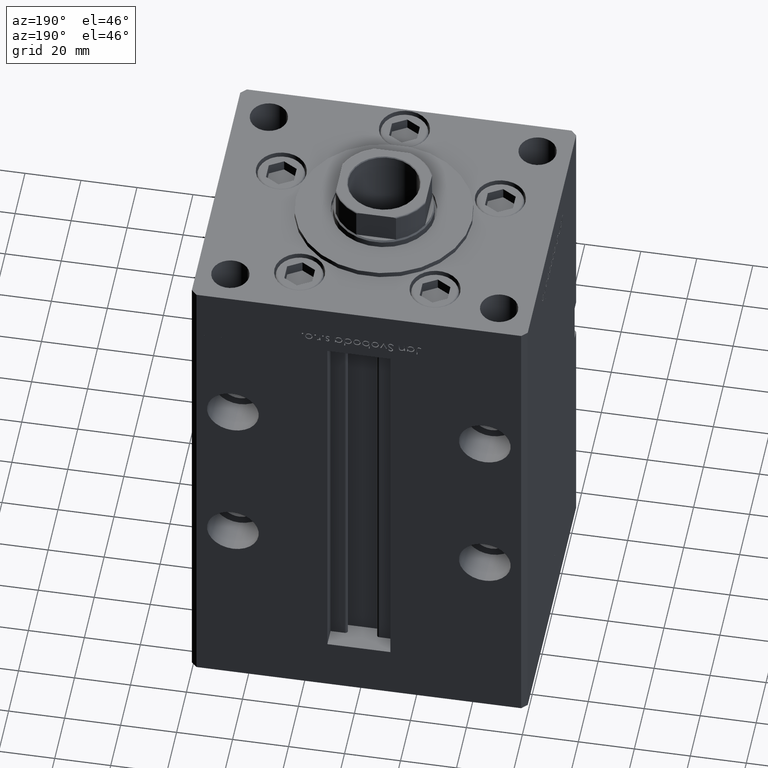
[diagram: clean part render]
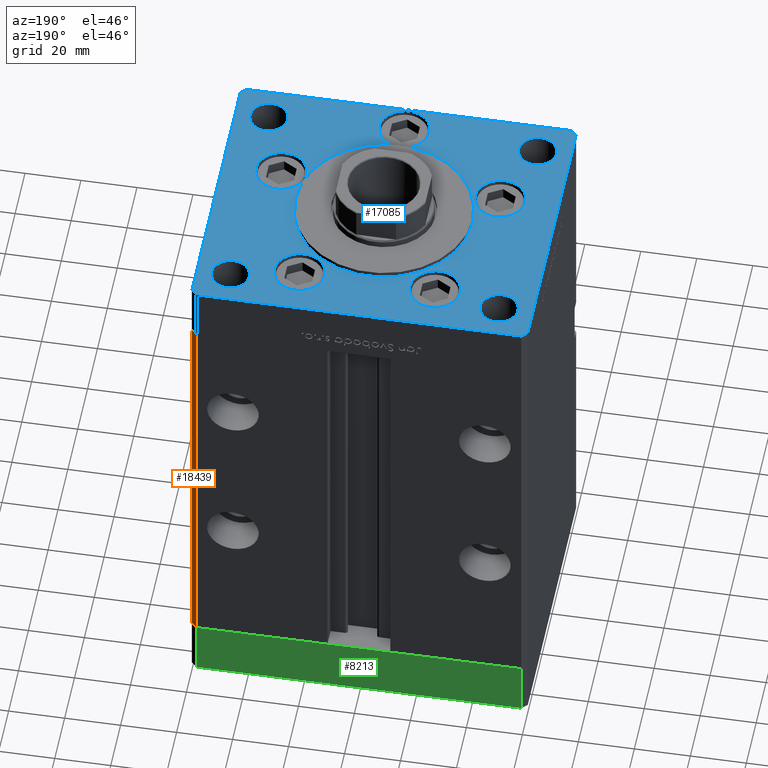
[diagram: same view with three faces highlighted in distinct colors, each labeled with its STEP entity id]
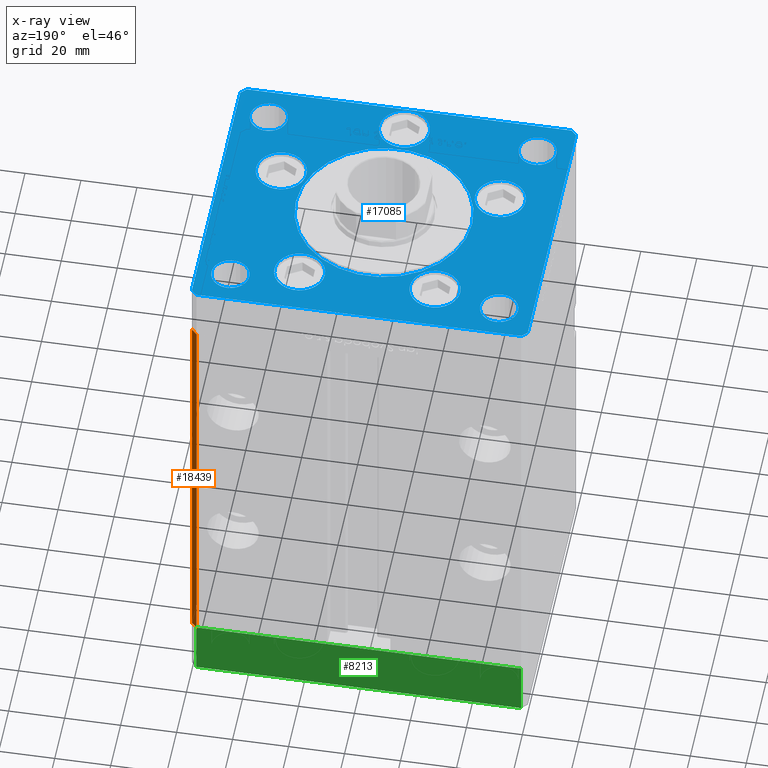
[diagram: x-ray of the same camera — body ghosted, the three highlighted faces saturated]
A machine part, auxiliary view with three faces highlighted in distinct colors.
The next image is the same camera in x-ray (body ghosted, the three faces saturated) — at least one of them is partly hidden behind the body in this view.
Their STEP definitions:

[orange] entity #18439 — the highlighted planar face has unit normal (0.7071, 0.7071, 0).
#447 = VERTEX_POINT ( 'NONE', #13928 ) ;
#452 = ORIENTED_EDGE ( 'NONE', *, *, #51378, .T. ) ;
#2524 = VECTOR ( 'NONE', #8124, 1000.000000000000114 ) ;
#4345 = EDGE_CURVE ( 'NONE', #10965, #8953, #28503, .T. ) ;
#8124 = DIRECTION ( 'NONE',  ( 0.7071067811865500152, -0.7071067811865451302, 0.000000000000000000 ) ) ;
#8564 = CARTESIAN_POINT ( 'NONE',  ( 57.99999999999999289, 51.00000000000000711, 0.000000000000000000 ) ) ;
#8953 = VERTEX_POINT ( 'NONE', #38771 ) ;
#10660 = ORIENTED_EDGE ( 'NONE', *, *, #44361, .F. ) ;
#10965 = VERTEX_POINT ( 'NONE', #33026 ) ;
#13928 = CARTESIAN_POINT ( 'NONE',  ( 60.00000000000001421, 49.00000000000000000, 0.000000000000000000 ) ) ;
#15336 = VECTOR ( 'NONE', #24058, 1000.000000000000000 ) ;
#17616 = AXIS2_PLACEMENT_3D ( 'NONE', #23137, #18576, #22354 ) ;
#18322 = FACE_OUTER_BOUND ( 'NONE', #39836, .T. ) ;
#18411 = ORIENTED_EDGE ( 'NONE', *, *, #51585, .F. ) ;
#18439 = ADVANCED_FACE ( 'NONE', ( #18322 ), #22086, .T. ) ;
#18576 = DIRECTION ( 'NONE',  ( 0.7071067811865451302, 0.7071067811865499042, -0.000000000000000000 ) ) ;
#22086 = PLANE ( 'NONE',  #17616 ) ;
#22354 = DIRECTION ( 'NONE',  ( -0.7071067811865499042, 0.7071067811865451302, 0.000000000000000000 ) ) ;
#22396 = LINE ( 'NONE', #34692, #53032 ) ;
#22726 = ORIENTED_EDGE ( 'NONE', *, *, #4345, .T. ) ;
#23137 = CARTESIAN_POINT ( 'NONE',  ( 57.99999999999999289, 51.00000000000000711, 148.5000000000000000 ) ) ;
#23247 = LINE ( 'NONE', #32077, #15336 ) ;
#24058 = DIRECTION ( 'NONE',  ( -0.000000000000000000, -0.000000000000000000, -1.000000000000000000 ) ) ;
#26450 = VERTEX_POINT ( 'NONE', #8564 ) ;
#27968 = CARTESIAN_POINT ( 'NONE',  ( 57.99999999999999289, 51.00000000000000711, 148.5000000000000000 ) ) ;
#28503 = LINE ( 'NONE', #27968, #2524 ) ;
#28829 = VECTOR ( 'NONE', #41973, 1000.000000000000114 ) ;
#29883 = LINE ( 'NONE', #41188, #28829 ) ;
#32077 = CARTESIAN_POINT ( 'NONE',  ( 60.00000000000001421, 49.00000000000000000, 148.5000000000000000 ) ) ;
#33026 = CARTESIAN_POINT ( 'NONE',  ( 57.99999999999999289, 51.00000000000000711, 148.5000000000000000 ) ) ;
#34692 = CARTESIAN_POINT ( 'NONE',  ( 57.99999999999999289, 51.00000000000000711, 148.5000000000000000 ) ) ;
#38771 = CARTESIAN_POINT ( 'NONE',  ( 60.00000000000001421, 49.00000000000000000, 148.5000000000000000 ) ) ;
#38990 = DIRECTION ( 'NONE',  ( -0.000000000000000000, -0.000000000000000000, -1.000000000000000000 ) ) ;
#39836 = EDGE_LOOP ( 'NONE', ( #10660, #18411, #22726, #452 ) ) ;
#41188 = CARTESIAN_POINT ( 'NONE',  ( 57.99999999999999289, 51.00000000000000711, 0.000000000000000000 ) ) ;
#41973 = DIRECTION ( 'NONE',  ( 0.7071067811865500152, -0.7071067811865451302, 0.000000000000000000 ) ) ;
#44361 = EDGE_CURVE ( 'NONE', #26450, #447, #29883, .T. ) ;
#51378 = EDGE_CURVE ( 'NONE', #8953, #447, #23247, .T. ) ;
#51585 = EDGE_CURVE ( 'NONE', #10965, #26450, #22396, .T. ) ;
#53032 = VECTOR ( 'NONE', #38990, 1000.000000000000000 ) ;

[blue] entity #17085 — the highlighted planar face has unit normal (0, 0, 1).
#402 = ORIENTED_EDGE ( 'NONE', *, *, #26818, .T. ) ;
#417 = CARTESIAN_POINT ( 'NONE',  ( -57.99999999999998579, 50.99999999999997868, 0.000000000000000000 ) ) ;
#444 = DIRECTION ( 'NONE',  ( -1.000000000000000000, 0.000000000000000000, 0.000000000000000000 ) ) ;
#678 = DIRECTION ( 'NONE',  ( 0.7071067811865474617, -0.7071067811865474617, 0.000000000000000000 ) ) ;
#778 = CIRCLE ( 'NONE', #39305, 31.50000000000000000 ) ;
#839 = DIRECTION ( 'NONE',  ( 1.000000000000000000, 9.570888143320313916E-16, 0.000000000000000000 ) ) ;
#850 = AXIS2_PLACEMENT_3D ( 'NONE', #49615, #33514, #8066 ) ;
#1142 = FACE_BOUND ( 'NONE', #2109, .T. ) ;
#2109 = EDGE_LOOP ( 'NONE', ( #9364, #37069 ) ) ;
#2478 = EDGE_LOOP ( 'NONE', ( #40211, #36407 ) ) ;
#2539 = CARTESIAN_POINT ( 'NONE',  ( -54.75000000000000000, -39.00000000000001421, 0.000000000000000000 ) ) ;
#2721 = CARTESIAN_POINT ( 'NONE',  ( -24.19288941894913592, 33.71874999999998579, 0.000000000000000000 ) ) ;
#3466 = AXIS2_PLACEMENT_3D ( 'NONE', #51587, #47052, #47573 ) ;
#3539 = DIRECTION ( 'NONE',  ( 1.000000000000000000, 0.000000000000000000, 0.000000000000000000 ) ) ;
#3543 = AXIS2_PLACEMENT_3D ( 'NONE', #28341, #37173, #444 ) ;
#3550 = CIRCLE ( 'NONE', #24930, 9.000000000000000000 ) ;
#3590 = CARTESIAN_POINT ( 'NONE',  ( 39.12657522565563539, -13.83333333333332860, 0.000000000000000000 ) ) ;
#3878 = CARTESIAN_POINT ( 'NONE',  ( 24.19288941894913592, 33.71874999999998579, 0.000000000000000000 ) ) ;
#3948 = EDGE_CURVE ( 'NONE', #34974, #8174, #7927, .T. ) ;
#3997 = AXIS2_PLACEMENT_3D ( 'NONE', #3878, #7626, #20245 ) ;
#4208 = CARTESIAN_POINT ( 'NONE',  ( 48.12657522565563539, -13.83333333333332860, 0.000000000000000000 ) ) ;
#4377 = CIRCLE ( 'NONE', #850, 9.000000000000001776 ) ;
#4946 = AXIS2_PLACEMENT_3D ( 'NONE', #36270, #8650, #37065 ) ;
#5231 = CARTESIAN_POINT ( 'NONE',  ( 58.00000000000000000, 51.00000000000000711, 0.000000000000000000 ) ) ;
#5320 = EDGE_CURVE ( 'NONE', #26225, #11371, #30789, .T. ) ;
#5554 = ORIENTED_EDGE ( 'NONE', *, *, #37290, .T. ) ;
#6052 = EDGE_CURVE ( 'NONE', #11535, #30641, #11147, .T. ) ;
#6193 = CARTESIAN_POINT ( 'NONE',  ( -48.00000000000000000, 39.00000000000000711, 0.000000000000000000 ) ) ;
#6270 = CARTESIAN_POINT ( 'NONE',  ( 60.00000000000001421, -48.99999999999992895, 0.000000000000000000 ) ) ;
#6360 = VERTEX_POINT ( 'NONE', #2539 ) ;
#6376 = EDGE_CURVE ( 'NONE', #45200, #25904, #17163, .T. ) ;
#6521 = CARTESIAN_POINT ( 'NONE',  ( 31.50000000000000000, -3.081256486593065689E-15, 0.000000000000000000 ) ) ;
#6700 = ORIENTED_EDGE ( 'NONE', *, *, #6376, .F. ) ;
#6874 = DIRECTION ( 'NONE',  ( 1.000000000000000000, 0.000000000000000000, 0.000000000000000000 ) ) ;
#6931 = DIRECTION ( 'NONE',  ( 1.000000000000000000, 0.000000000000000000, 0.000000000000000000 ) ) ;
#7191 = CIRCLE ( 'NONE', #19189, 9.000000000000000000 ) ;
#7626 = DIRECTION ( 'NONE',  ( 0.000000000000000000, 0.000000000000000000, 1.000000000000000000 ) ) ;
#7704 = CIRCLE ( 'NONE', #41955, 6.749999999999999112 ) ;
#7837 = CARTESIAN_POINT ( 'NONE',  ( 15.19288941894913236, 33.71874999999998579, 0.000000000000000000 ) ) ;
#7927 = LINE ( 'NONE', #417, #46153 ) ;
#7938 = CARTESIAN_POINT ( 'NONE',  ( -48.12657522565563539, -13.83333333333332682, 0.000000000000000000 ) ) ;
#8066 = DIRECTION ( 'NONE',  ( 1.000000000000000000, 0.000000000000000000, 0.000000000000000000 ) ) ;
#8174 = VERTEX_POINT ( 'NONE', #30698 ) ;
#8188 = VERTEX_POINT ( 'NONE', #30433 ) ;
#8236 = EDGE_CURVE ( 'NONE', #37383, #42125, #34189, .T. ) ;
#8592 = EDGE_LOOP ( 'NONE', ( #24203, #26506 ) ) ;
#8650 = DIRECTION ( 'NONE',  ( 0.000000000000000000, 0.000000000000000000, 1.000000000000000000 ) ) ;
#8725 = CARTESIAN_POINT ( 'NONE',  ( -60.00000000000000000, -49.00000000000004263, 0.000000000000000000 ) ) ;
#8974 = DIRECTION ( 'NONE',  ( -0.000000000000000000, -0.000000000000000000, -1.000000000000000000 ) ) ;
#9350 = VECTOR ( 'NONE', #30674, 1000.000000000000000 ) ;
#9364 = ORIENTED_EDGE ( 'NONE', *, *, #8236, .F. ) ;
#9707 = FACE_BOUND ( 'NONE', #36487, .T. ) ;
#9968 = FACE_BOUND ( 'NONE', #30309, .T. ) ;
#10120 = DIRECTION ( 'NONE',  ( 0.000000000000000000, 0.000000000000000000, 1.000000000000000000 ) ) ;
#10349 = DIRECTION ( 'NONE',  ( 0.000000000000000000, 0.000000000000000000, 1.000000000000000000 ) ) ;
#10585 = EDGE_CURVE ( 'NONE', #6360, #31231, #18830, .T. ) ;
#10831 = DIRECTION ( 'NONE',  ( 1.000000000000000000, 0.000000000000000000, 0.000000000000000000 ) ) ;
#10892 = VERTEX_POINT ( 'NONE', #18574 ) ;
#11106 = AXIS2_PLACEMENT_3D ( 'NONE', #47077, #10349, #25903 ) ;
#11112 = CARTESIAN_POINT ( 'NONE',  ( 60.00000000000001421, 49.00000000000002842, 0.000000000000000000 ) ) ;
#11147 = CIRCLE ( 'NONE', #45409, 9.000000000000001776 ) ;
#11311 = DIRECTION ( 'NONE',  ( -1.000000000000000000, 0.000000000000000000, 0.000000000000000000 ) ) ;
#11326 = CARTESIAN_POINT ( 'NONE',  ( -54.75000000000000000, 39.00000000000000711, 0.000000000000000000 ) ) ;
#11348 = DIRECTION ( 'NONE',  ( 0.000000000000000000, 0.000000000000000000, 1.000000000000000000 ) ) ;
#11371 = VERTEX_POINT ( 'NONE', #17664 ) ;
#11535 = VERTEX_POINT ( 'NONE', #15515 ) ;
#12226 = DIRECTION ( 'NONE',  ( -1.000000000000000000, 0.000000000000000000, 0.000000000000000000 ) ) ;
#12579 = CARTESIAN_POINT ( 'NONE',  ( -48.00000000000000000, -39.00000000000001421, 0.000000000000000000 ) ) ;
#12783 = EDGE_CURVE ( 'NONE', #11371, #26225, #7191, .T. ) ;
#13413 = VECTOR ( 'NONE', #14601, 1000.000000000000000 ) ;
#13984 = ORIENTED_EDGE ( 'NONE', *, *, #12783, .F. ) ;
#14082 = CARTESIAN_POINT ( 'NONE',  ( -60.00000000000000000, -49.00000000000004263, 0.000000000000000000 ) ) ;
#14168 = AXIS2_PLACEMENT_3D ( 'NONE', #47557, #15398, #10831 ) ;
#14339 = LINE ( 'NONE', #5231, #9350 ) ;
#14601 = DIRECTION ( 'NONE',  ( -0.7071067811865536790, 0.7071067811865414665, 0.000000000000000000 ) ) ;
#15049 = PLANE ( 'NONE',  #33000 ) ;
#15177 = ORIENTED_EDGE ( 'NONE', *, *, #10585, .F. ) ;
#15398 = DIRECTION ( 'NONE',  ( 0.000000000000000000, 0.000000000000000000, 1.000000000000000000 ) ) ;
#15407 = CIRCLE ( 'NONE', #45366, 9.000000000000001776 ) ;
#15515 = CARTESIAN_POINT ( 'NONE',  ( 30.12657522565563539, -13.83333333333332682, 0.000000000000000000 ) ) ;
#15561 = ORIENTED_EDGE ( 'NONE', *, *, #21461, .F. ) ;
#15639 = CARTESIAN_POINT ( 'NONE',  ( 0.000000000000000000, -41.50000000000000000, 0.000000000000000000 ) ) ;
#15912 = EDGE_CURVE ( 'NONE', #52888, #49914, #49469, .T. ) ;
#15920 = DIRECTION ( 'NONE',  ( 0.000000000000000000, 0.000000000000000000, 1.000000000000000000 ) ) ;
#16025 = CIRCLE ( 'NONE', #14168, 6.749999999999999112 ) ;
#16450 = DIRECTION ( 'NONE',  ( 1.000000000000000000, 0.000000000000000000, 0.000000000000000000 ) ) ;
#16533 = CARTESIAN_POINT ( 'NONE',  ( -58.00000000000000711, -51.00000000000002842, 0.000000000000000000 ) ) ;
#16952 = EDGE_LOOP ( 'NONE', ( #46015, #43789 ) ) ;
#17032 = CARTESIAN_POINT ( 'NONE',  ( 48.00000000000000000, -39.00000000000001421, 0.000000000000000000 ) ) ;
#17085 = ADVANCED_FACE ( 'NONE', ( #9707, #21539, #1142, #17500, #33825, #50189, #34356, #46694, #9968, #42671, #43739 ), #15049, .T. ) ;
#17163 = CIRCLE ( 'NONE', #3466, 31.50000000000000000 ) ;
#17500 = FACE_BOUND ( 'NONE', #32121, .T. ) ;
#17664 = CARTESIAN_POINT ( 'NONE',  ( -9.000000000000000000, -41.50000000000000000, 0.000000000000000000 ) ) ;
#17680 = CIRCLE ( 'NONE', #3997, 9.000000000000001776 ) ;
#17716 = CARTESIAN_POINT ( 'NONE',  ( -60.00000000000000000, 49.00000000000000000, 0.000000000000000000 ) ) ;
#17735 = EDGE_CURVE ( 'NONE', #41058, #23407, #22736, .T. ) ;
#17780 = CARTESIAN_POINT ( 'NONE',  ( -41.25000000000000000, -39.00000000000001421, 0.000000000000000000 ) ) ;
#17813 = CARTESIAN_POINT ( 'NONE',  ( -57.99999999999998579, 50.99999999999997868, 0.000000000000000000 ) ) ;
#18574 = CARTESIAN_POINT ( 'NONE',  ( 58.00000000000001421, -50.99999999999992184, 0.000000000000000000 ) ) ;
#18802 = CARTESIAN_POINT ( 'NONE',  ( 41.25000000000000000, 39.00000000000000000, 0.000000000000000000 ) ) ;
#18830 = CIRCLE ( 'NONE', #25679, 6.749999999999999112 ) ;
#19189 = AXIS2_PLACEMENT_3D ( 'NONE', #15639, #11348, #40296 ) ;
#19388 = ORIENTED_EDGE ( 'NONE', *, *, #44364, .T. ) ;
#19500 = CARTESIAN_POINT ( 'NONE',  ( -39.12657522565563539, -13.83333333333332860, 0.000000000000000000 ) ) ;
#19723 = CARTESIAN_POINT ( 'NONE',  ( 0.000000000000000000, -6.938893903907228378E-15, 0.000000000000000000 ) ) ;
#20020 = DIRECTION ( 'NONE',  ( -0.7071067811865536790, -0.7071067811865414665, 0.000000000000000000 ) ) ;
#20078 = VERTEX_POINT ( 'NONE', #32125 ) ;
#20245 = DIRECTION ( 'NONE',  ( 1.000000000000000000, 0.000000000000000000, 0.000000000000000000 ) ) ;
#21459 = EDGE_LOOP ( 'NONE', ( #5554, #29455 ) ) ;
#21461 = EDGE_CURVE ( 'NONE', #48549, #20078, #16025, .T. ) ;
#21495 = AXIS2_PLACEMENT_3D ( 'NONE', #39109, #51171, #6931 ) ;
#21539 = FACE_BOUND ( 'NONE', #8592, .T. ) ;
#21611 = LINE ( 'NONE', #6270, #22817 ) ;
#22195 = DIRECTION ( 'NONE',  ( 1.000000000000000000, 0.000000000000000000, 0.000000000000000000 ) ) ;
#22454 = DIRECTION ( 'NONE',  ( 0.000000000000000000, 0.000000000000000000, 1.000000000000000000 ) ) ;
#22481 = VERTEX_POINT ( 'NONE', #11326 ) ;
#22716 = CARTESIAN_POINT ( 'NONE',  ( -30.12657522565563539, -13.83333333333332860, 0.000000000000000000 ) ) ;
#22736 = CIRCLE ( 'NONE', #45823, 6.749999999999999112 ) ;
#22817 = VECTOR ( 'NONE', #38727, 1000.000000000000000 ) ;
#23100 = DIRECTION ( 'NONE',  ( -0.000000000000000000, 0.000000000000000000, 1.000000000000000000 ) ) ;
#23105 = CARTESIAN_POINT ( 'NONE',  ( -41.25000000000000000, 39.00000000000000711, 0.000000000000000000 ) ) ;
#23189 = CARTESIAN_POINT ( 'NONE',  ( 54.75000000000000000, -39.00000000000001421, 0.000000000000000000 ) ) ;
#23332 = VERTEX_POINT ( 'NONE', #23105 ) ;
#23407 = VERTEX_POINT ( 'NONE', #52589 ) ;
#23906 = DIRECTION ( 'NONE',  ( 1.000000000000000000, 0.000000000000000000, 0.000000000000000000 ) ) ;
#24142 = EDGE_CURVE ( 'NONE', #49914, #10892, #36505, .T. ) ;
#24203 = ORIENTED_EDGE ( 'NONE', *, *, #35652, .F. ) ;
#24276 = VERTEX_POINT ( 'NONE', #34562 ) ;
#24436 = VERTEX_POINT ( 'NONE', #28397 ) ;
#24754 = AXIS2_PLACEMENT_3D ( 'NONE', #19500, #35833, #27791 ) ;
#24815 = CARTESIAN_POINT ( 'NONE',  ( 60.00000000000001421, 49.00000000000002842, 0.000000000000000000 ) ) ;
#24930 = AXIS2_PLACEMENT_3D ( 'NONE', #2721, #44546, #3539 ) ;
#25059 = EDGE_CURVE ( 'NONE', #42125, #37383, #17680, .T. ) ;
#25679 = AXIS2_PLACEMENT_3D ( 'NONE', #51602, #48136, #43297 ) ;
#25903 = DIRECTION ( 'NONE',  ( 1.000000000000000000, 0.000000000000000000, 0.000000000000000000 ) ) ;
#25904 = VERTEX_POINT ( 'NONE', #46468 ) ;
#26225 = VERTEX_POINT ( 'NONE', #43158 ) ;
#26506 = ORIENTED_EDGE ( 'NONE', *, *, #37302, .F. ) ;
#26692 = ORIENTED_EDGE ( 'NONE', *, *, #15912, .T. ) ;
#26818 = EDGE_CURVE ( 'NONE', #8174, #52888, #38083, .T. ) ;
#27379 = CARTESIAN_POINT ( 'NONE',  ( 33.19288941894913592, 33.71874999999998579, 0.000000000000000000 ) ) ;
#27455 = LINE ( 'NONE', #11112, #13413 ) ;
#27791 = DIRECTION ( 'NONE',  ( 1.000000000000000000, 0.000000000000000000, 0.000000000000000000 ) ) ;
#28068 = VECTOR ( 'NONE', #44312, 1000.000000000000114 ) ;
#28341 = CARTESIAN_POINT ( 'NONE',  ( -48.00000000000000000, 39.00000000000000711, 0.000000000000000000 ) ) ;
#28365 = CIRCLE ( 'NONE', #48884, 6.749999999999999112 ) ;
#28397 = CARTESIAN_POINT ( 'NONE',  ( 60.00000000000001421, -48.99999999999992895, 0.000000000000000000 ) ) ;
#28711 = ORIENTED_EDGE ( 'NONE', *, *, #45162, .T. ) ;
#29206 = CIRCLE ( 'NONE', #49644, 6.749999999999999112 ) ;
#29422 = CARTESIAN_POINT ( 'NONE',  ( -33.19288941894913592, 33.71874999999998579, 0.000000000000000000 ) ) ;
#29455 = ORIENTED_EDGE ( 'NONE', *, *, #40879, .T. ) ;
#30231 = ORIENTED_EDGE ( 'NONE', *, *, #5320, .F. ) ;
#30309 = EDGE_LOOP ( 'NONE', ( #36524, #15177 ) ) ;
#30433 = CARTESIAN_POINT ( 'NONE',  ( -15.19288941894913592, 33.71874999999998579, 0.000000000000000000 ) ) ;
#30641 = VERTEX_POINT ( 'NONE', #4208 ) ;
#30674 = DIRECTION ( 'NONE',  ( -1.000000000000000000, -2.392722035830078972E-16, 0.000000000000000000 ) ) ;
#30698 = CARTESIAN_POINT ( 'NONE',  ( -60.00000000000000000, 49.00000000000000000, 0.000000000000000000 ) ) ;
#30789 = CIRCLE ( 'NONE', #36788, 9.000000000000000000 ) ;
#31033 = EDGE_CURVE ( 'NONE', #25904, #45200, #778, .T. ) ;
#31119 = CARTESIAN_POINT ( 'NONE',  ( 0.000000000000000000, 0.000000000000000000, 0.000000000000000000 ) ) ;
#31231 = VERTEX_POINT ( 'NONE', #17780 ) ;
#31662 = ORIENTED_EDGE ( 'NONE', *, *, #31033, .F. ) ;
#31974 = LINE ( 'NONE', #48342, #28068 ) ;
#32121 = EDGE_LOOP ( 'NONE', ( #45845, #45245 ) ) ;
#32125 = CARTESIAN_POINT ( 'NONE',  ( 54.75000000000000000, 39.00000000000000000, 0.000000000000000000 ) ) ;
#32234 = CARTESIAN_POINT ( 'NONE',  ( 48.00000000000000000, -39.00000000000001421, 0.000000000000000000 ) ) ;
#32418 = DIRECTION ( 'NONE',  ( 1.000000000000000000, 0.000000000000000000, 0.000000000000000000 ) ) ;
#32479 = CIRCLE ( 'NONE', #24754, 9.000000000000001776 ) ;
#32747 = CARTESIAN_POINT ( 'NONE',  ( -58.00000000000000711, -51.00000000000002842, 0.000000000000000000 ) ) ;
#33000 = AXIS2_PLACEMENT_3D ( 'NONE', #31119, #23100, #23906 ) ;
#33514 = DIRECTION ( 'NONE',  ( 0.000000000000000000, 0.000000000000000000, 1.000000000000000000 ) ) ;
#33825 = FACE_BOUND ( 'NONE', #50429, .T. ) ;
#33863 = EDGE_CURVE ( 'NONE', #23407, #41058, #7704, .T. ) ;
#34006 = VERTEX_POINT ( 'NONE', #24815 ) ;
#34189 = CIRCLE ( 'NONE', #11106, 9.000000000000001776 ) ;
#34241 = CARTESIAN_POINT ( 'NONE',  ( 39.12657522565563539, -13.83333333333332860, 0.000000000000000000 ) ) ;
#34253 = EDGE_CURVE ( 'NONE', #30641, #11535, #15407, .T. ) ;
#34356 = FACE_BOUND ( 'NONE', #21459, .T. ) ;
#34562 = CARTESIAN_POINT ( 'NONE',  ( 58.00000000000000000, 51.00000000000000711, 0.000000000000000000 ) ) ;
#34916 = ORIENTED_EDGE ( 'NONE', *, *, #47614, .T. ) ;
#34974 = VERTEX_POINT ( 'NONE', #17813 ) ;
#35652 = EDGE_CURVE ( 'NONE', #8188, #35985, #39462, .T. ) ;
#35711 = DIRECTION ( 'NONE',  ( -0.000000000000000000, -0.000000000000000000, -1.000000000000000000 ) ) ;
#35749 = CIRCLE ( 'NONE', #4946, 6.749999999999999112 ) ;
#35833 = DIRECTION ( 'NONE',  ( 0.000000000000000000, 0.000000000000000000, 1.000000000000000000 ) ) ;
#35985 = VERTEX_POINT ( 'NONE', #29422 ) ;
#36226 = DIRECTION ( 'NONE',  ( -0.000000000000000000, -0.000000000000000000, -1.000000000000000000 ) ) ;
#36270 = CARTESIAN_POINT ( 'NONE',  ( 48.00000000000000000, 39.00000000000000000, 0.000000000000000000 ) ) ;
#36350 = ORIENTED_EDGE ( 'NONE', *, *, #51530, .T. ) ;
#36407 = ORIENTED_EDGE ( 'NONE', *, *, #37499, .F. ) ;
#36487 = EDGE_LOOP ( 'NONE', ( #31662, #6700 ) ) ;
#36505 = LINE ( 'NONE', #32747, #51892 ) ;
#36524 = ORIENTED_EDGE ( 'NONE', *, *, #40640, .F. ) ;
#36788 = AXIS2_PLACEMENT_3D ( 'NONE', #39326, #22454, #6874 ) ;
#36907 = CIRCLE ( 'NONE', #3543, 6.749999999999999112 ) ;
#37065 = DIRECTION ( 'NONE',  ( 1.000000000000000000, 0.000000000000000000, 0.000000000000000000 ) ) ;
#37069 = ORIENTED_EDGE ( 'NONE', *, *, #25059, .F. ) ;
#37173 = DIRECTION ( 'NONE',  ( -0.000000000000000000, -0.000000000000000000, -1.000000000000000000 ) ) ;
#37290 = EDGE_CURVE ( 'NONE', #23332, #22481, #29206, .T. ) ;
#37302 = EDGE_CURVE ( 'NONE', #35985, #8188, #3550, .T. ) ;
#37383 = VERTEX_POINT ( 'NONE', #27379 ) ;
#37499 = EDGE_CURVE ( 'NONE', #50572, #39548, #4377, .T. ) ;
#38083 = LINE ( 'NONE', #17716, #43397 ) ;
#38727 = DIRECTION ( 'NONE',  ( 0.000000000000000000, 1.000000000000000000, 0.000000000000000000 ) ) ;
#39109 = CARTESIAN_POINT ( 'NONE',  ( -24.19288941894913592, 33.71874999999998579, 0.000000000000000000 ) ) ;
#39305 = AXIS2_PLACEMENT_3D ( 'NONE', #19723, #49181, #44639 ) ;
#39326 = CARTESIAN_POINT ( 'NONE',  ( 0.000000000000000000, -41.50000000000000000, 0.000000000000000000 ) ) ;
#39462 = CIRCLE ( 'NONE', #21495, 9.000000000000000000 ) ;
#39548 = VERTEX_POINT ( 'NONE', #22716 ) ;
#40211 = ORIENTED_EDGE ( 'NONE', *, *, #52343, .F. ) ;
#40296 = DIRECTION ( 'NONE',  ( 1.000000000000000000, 0.000000000000000000, 0.000000000000000000 ) ) ;
#40640 = EDGE_CURVE ( 'NONE', #31231, #6360, #28365, .T. ) ;
#40879 = EDGE_CURVE ( 'NONE', #22481, #23332, #36907, .T. ) ;
#41058 = VERTEX_POINT ( 'NONE', #23189 ) ;
#41955 = AXIS2_PLACEMENT_3D ( 'NONE', #17032, #8974, #12226 ) ;
#42125 = VERTEX_POINT ( 'NONE', #7837 ) ;
#42671 = FACE_OUTER_BOUND ( 'NONE', #49270, .T. ) ;
#43158 = CARTESIAN_POINT ( 'NONE',  ( 9.000000000000000000, -41.50000000000000000, 0.000000000000000000 ) ) ;
#43297 = DIRECTION ( 'NONE',  ( 1.000000000000000000, 0.000000000000000000, 0.000000000000000000 ) ) ;
#43397 = VECTOR ( 'NONE', #50940, 1000.000000000000000 ) ;
#43436 = ORIENTED_EDGE ( 'NONE', *, *, #24142, .T. ) ;
#43739 = FACE_BOUND ( 'NONE', #16952, .T. ) ;
#43789 = ORIENTED_EDGE ( 'NONE', *, *, #33863, .T. ) ;
#44312 = DIRECTION ( 'NONE',  ( 0.7071067811865474617, 0.7071067811865474617, 0.000000000000000000 ) ) ;
#44364 = EDGE_CURVE ( 'NONE', #24436, #34006, #21611, .T. ) ;
#44394 = ORIENTED_EDGE ( 'NONE', *, *, #47678, .F. ) ;
#44546 = DIRECTION ( 'NONE',  ( 0.000000000000000000, 0.000000000000000000, 1.000000000000000000 ) ) ;
#44639 = DIRECTION ( 'NONE',  ( 1.000000000000000000, 0.000000000000000000, 0.000000000000000000 ) ) ;
#45162 = EDGE_CURVE ( 'NONE', #34006, #24276, #27455, .T. ) ;
#45200 = VERTEX_POINT ( 'NONE', #6521 ) ;
#45245 = ORIENTED_EDGE ( 'NONE', *, *, #6052, .F. ) ;
#45366 = AXIS2_PLACEMENT_3D ( 'NONE', #3590, #15920, #16450 ) ;
#45409 = AXIS2_PLACEMENT_3D ( 'NONE', #34241, #10120, #22195 ) ;
#45823 = AXIS2_PLACEMENT_3D ( 'NONE', #32234, #35711, #48331 ) ;
#45845 = ORIENTED_EDGE ( 'NONE', *, *, #34253, .F. ) ;
#46015 = ORIENTED_EDGE ( 'NONE', *, *, #17735, .T. ) ;
#46153 = VECTOR ( 'NONE', #20020, 1000.000000000000000 ) ;
#46468 = CARTESIAN_POINT ( 'NONE',  ( -31.50000000000000000, -6.938893903907228378E-15, 0.000000000000000000 ) ) ;
#46694 = FACE_BOUND ( 'NONE', #49601, .T. ) ;
#46788 = ORIENTED_EDGE ( 'NONE', *, *, #3948, .T. ) ;
#47052 = DIRECTION ( 'NONE',  ( 0.000000000000000000, 0.000000000000000000, 1.000000000000000000 ) ) ;
#47077 = CARTESIAN_POINT ( 'NONE',  ( 24.19288941894913592, 33.71874999999998579, 0.000000000000000000 ) ) ;
#47557 = CARTESIAN_POINT ( 'NONE',  ( 48.00000000000000000, 39.00000000000000000, 0.000000000000000000 ) ) ;
#47573 = DIRECTION ( 'NONE',  ( 1.000000000000000000, 0.000000000000000000, 0.000000000000000000 ) ) ;
#47614 = EDGE_CURVE ( 'NONE', #10892, #24436, #31974, .T. ) ;
#47678 = EDGE_CURVE ( 'NONE', #20078, #48549, #35749, .T. ) ;
#48136 = DIRECTION ( 'NONE',  ( 0.000000000000000000, 0.000000000000000000, 1.000000000000000000 ) ) ;
#48331 = DIRECTION ( 'NONE',  ( -1.000000000000000000, 0.000000000000000000, 0.000000000000000000 ) ) ;
#48342 = CARTESIAN_POINT ( 'NONE',  ( 58.00000000000001421, -50.99999999999992184, 0.000000000000000000 ) ) ;
#48549 = VERTEX_POINT ( 'NONE', #18802 ) ;
#48884 = AXIS2_PLACEMENT_3D ( 'NONE', #12579, #52534, #32418 ) ;
#49181 = DIRECTION ( 'NONE',  ( 0.000000000000000000, 0.000000000000000000, 1.000000000000000000 ) ) ;
#49270 = EDGE_LOOP ( 'NONE', ( #26692, #43436, #34916, #19388, #28711, #36350, #46788, #402 ) ) ;
#49469 = LINE ( 'NONE', #8725, #50065 ) ;
#49601 = EDGE_LOOP ( 'NONE', ( #44394, #15561 ) ) ;
#49615 = CARTESIAN_POINT ( 'NONE',  ( -39.12657522565563539, -13.83333333333332860, 0.000000000000000000 ) ) ;
#49644 = AXIS2_PLACEMENT_3D ( 'NONE', #6193, #36226, #11311 ) ;
#49914 = VERTEX_POINT ( 'NONE', #16533 ) ;
#50065 = VECTOR ( 'NONE', #678, 1000.000000000000114 ) ;
#50189 = FACE_BOUND ( 'NONE', #2478, .T. ) ;
#50429 = EDGE_LOOP ( 'NONE', ( #30231, #13984 ) ) ;
#50572 = VERTEX_POINT ( 'NONE', #7938 ) ;
#50940 = DIRECTION ( 'NONE',  ( 0.000000000000000000, -1.000000000000000000, 0.000000000000000000 ) ) ;
#51171 = DIRECTION ( 'NONE',  ( 0.000000000000000000, 0.000000000000000000, 1.000000000000000000 ) ) ;
#51530 = EDGE_CURVE ( 'NONE', #24276, #34974, #14339, .T. ) ;
#51587 = CARTESIAN_POINT ( 'NONE',  ( 0.000000000000000000, -6.938893903907228378E-15, 0.000000000000000000 ) ) ;
#51602 = CARTESIAN_POINT ( 'NONE',  ( -48.00000000000000000, -39.00000000000001421, 0.000000000000000000 ) ) ;
#51892 = VECTOR ( 'NONE', #839, 1000.000000000000000 ) ;
#52343 = EDGE_CURVE ( 'NONE', #39548, #50572, #32479, .T. ) ;
#52534 = DIRECTION ( 'NONE',  ( 0.000000000000000000, 0.000000000000000000, 1.000000000000000000 ) ) ;
#52589 = CARTESIAN_POINT ( 'NONE',  ( 41.25000000000000000, -39.00000000000001421, 0.000000000000000000 ) ) ;
#52888 = VERTEX_POINT ( 'NONE', #14082 ) ;

[green] entity #8213 — the highlighted planar face has unit normal (-0, 1, 0).
#1505 = VERTEX_POINT ( 'NONE', #28962 ) ;
#2611 = DIRECTION ( 'NONE',  ( -1.000000000000000000, -2.392722035830079958E-16, 0.000000000000000000 ) ) ;
#3139 = CARTESIAN_POINT ( 'NONE',  ( 57.99999999999993605, 51.00000000000000711, -20.00000000000000000 ) ) ;
#4663 = DIRECTION ( 'NONE',  ( 0.000000000000000000, 0.000000000000000000, 1.000000000000000000 ) ) ;
#5965 = LINE ( 'NONE', #46479, #37325 ) ;
#6269 = VECTOR ( 'NONE', #21247, 1000.000000000000000 ) ;
#6525 = VECTOR ( 'NONE', #2611, 1000.000000000000000 ) ;
#6847 = EDGE_LOOP ( 'NONE', ( #14702, #44407, #48484, #24517 ) ) ;
#7229 = VERTEX_POINT ( 'NONE', #41719 ) ;
#8213 = ADVANCED_FACE ( 'NONE', ( #22668 ), #18385, .T. ) ;
#12050 = EDGE_CURVE ( 'NONE', #1505, #7229, #38636, .T. ) ;
#13630 = VECTOR ( 'NONE', #4663, 1000.000000000000000 ) ;
#14702 = ORIENTED_EDGE ( 'NONE', *, *, #12050, .F. ) ;
#14939 = LINE ( 'NONE', #3139, #6525 ) ;
#15142 = VERTEX_POINT ( 'NONE', #20467 ) ;
#18385 = PLANE ( 'NONE',  #36783 ) ;
#18407 = EDGE_CURVE ( 'NONE', #15142, #1505, #5965, .T. ) ;
#20467 = CARTESIAN_POINT ( 'NONE',  ( 57.99999999999993605, 51.00000000000000711, -20.00000000000000000 ) ) ;
#21247 = DIRECTION ( 'NONE',  ( -1.000000000000000000, -2.392722035830079958E-16, 0.000000000000000000 ) ) ;
#22668 = FACE_OUTER_BOUND ( 'NONE', #6847, .T. ) ;
#24517 = ORIENTED_EDGE ( 'NONE', *, *, #32188, .T. ) ;
#24614 = EDGE_CURVE ( 'NONE', #15142, #41527, #14939, .T. ) ;
#25054 = LINE ( 'NONE', #25838, #13630 ) ;
#25838 = CARTESIAN_POINT ( 'NONE',  ( -57.99999999999999289, 50.99999999999997868, -20.00000000000000000 ) ) ;
#28962 = CARTESIAN_POINT ( 'NONE',  ( 57.99999999999993605, 51.00000000000000711, 0.000000000000000000 ) ) ;
#29915 = CARTESIAN_POINT ( 'NONE',  ( 57.99999999999993605, 51.00000000000000711, -20.00000000000000000 ) ) ;
#32188 = EDGE_CURVE ( 'NONE', #41527, #7229, #25054, .T. ) ;
#34914 = DIRECTION ( 'NONE',  ( 0.000000000000000000, 0.000000000000000000, 1.000000000000000000 ) ) ;
#36783 = AXIS2_PLACEMENT_3D ( 'NONE', #29915, #43043, #50568 ) ;
#37325 = VECTOR ( 'NONE', #34914, 1000.000000000000000 ) ;
#38636 = LINE ( 'NONE', #41607, #6269 ) ;
#41003 = CARTESIAN_POINT ( 'NONE',  ( -57.99999999999999289, 50.99999999999997868, -20.00000000000000000 ) ) ;
#41527 = VERTEX_POINT ( 'NONE', #41003 ) ;
#41607 = CARTESIAN_POINT ( 'NONE',  ( 57.99999999999993605, 51.00000000000000711, 0.000000000000000000 ) ) ;
#41719 = CARTESIAN_POINT ( 'NONE',  ( -57.99999999999999289, 50.99999999999997868, 0.000000000000000000 ) ) ;
#43043 = DIRECTION ( 'NONE',  ( -2.392722035830079958E-16, 1.000000000000000000, 0.000000000000000000 ) ) ;
#44407 = ORIENTED_EDGE ( 'NONE', *, *, #18407, .F. ) ;
#46479 = CARTESIAN_POINT ( 'NONE',  ( 57.99999999999993605, 51.00000000000000711, -20.00000000000000000 ) ) ;
#48484 = ORIENTED_EDGE ( 'NONE', *, *, #24614, .T. ) ;
#50568 = DIRECTION ( 'NONE',  ( -1.000000000000000000, -2.392722035830079958E-16, 0.000000000000000000 ) ) ;